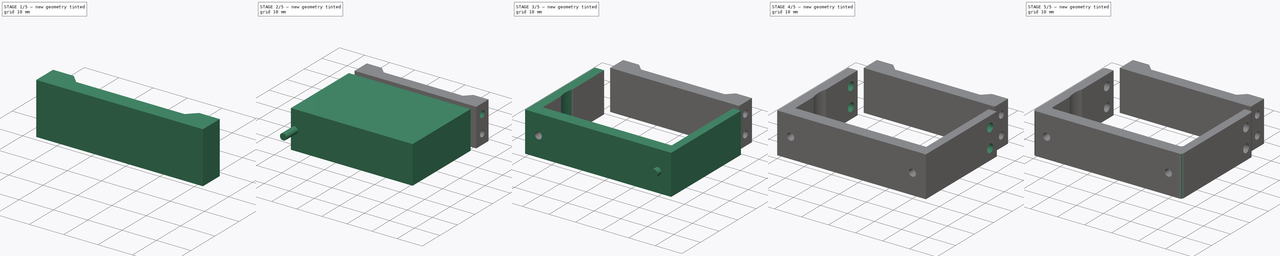
[diagram: build sequence overview — one tinted view per stage of 5, left to right]
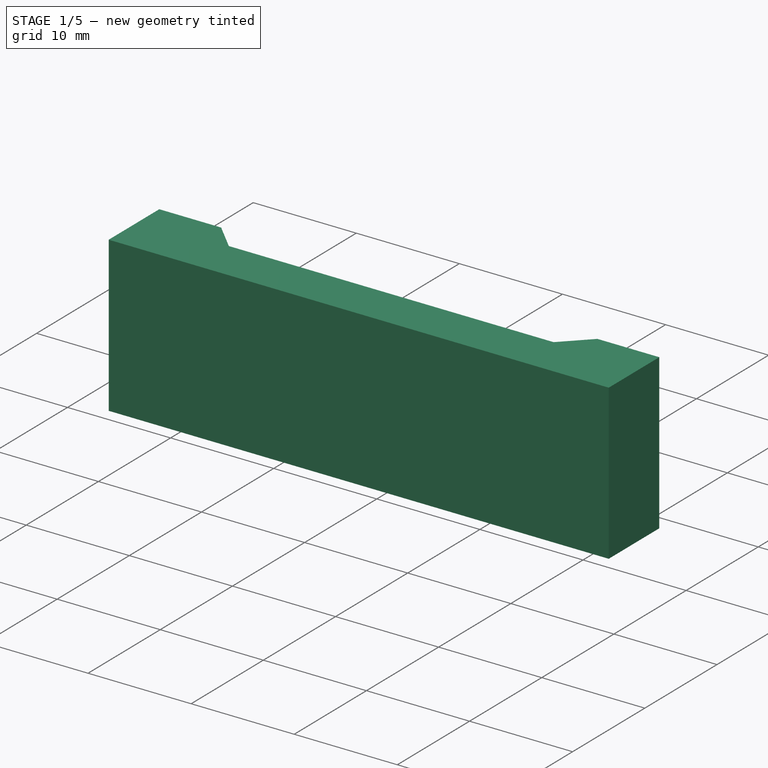
[diagram: stage 1 of 5 — iso view after this stage's code; geometry added in this stage tinted green]
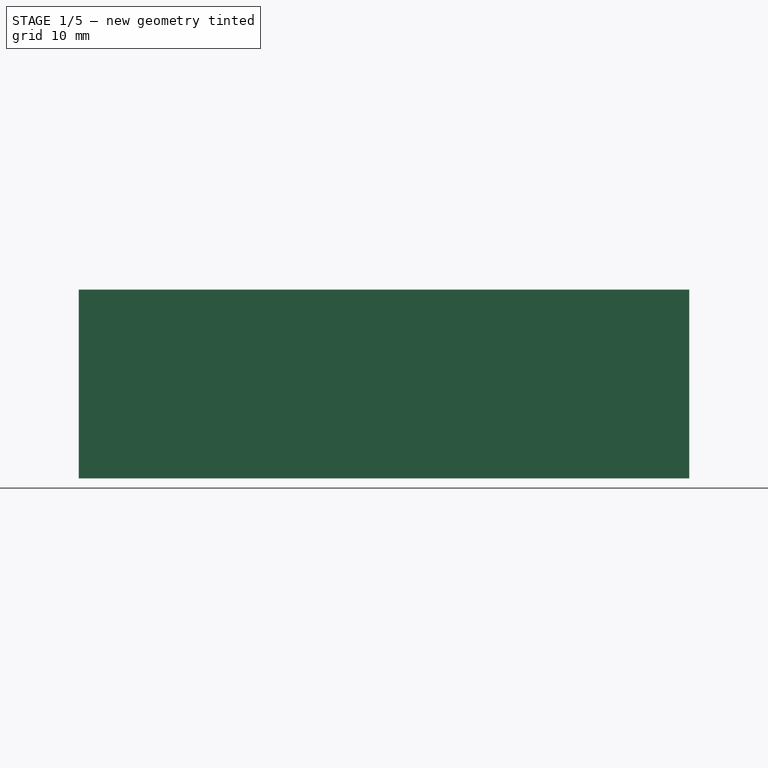
[diagram: stage 1 of 5 — front view after this stage's code; geometry added in this stage tinted green]
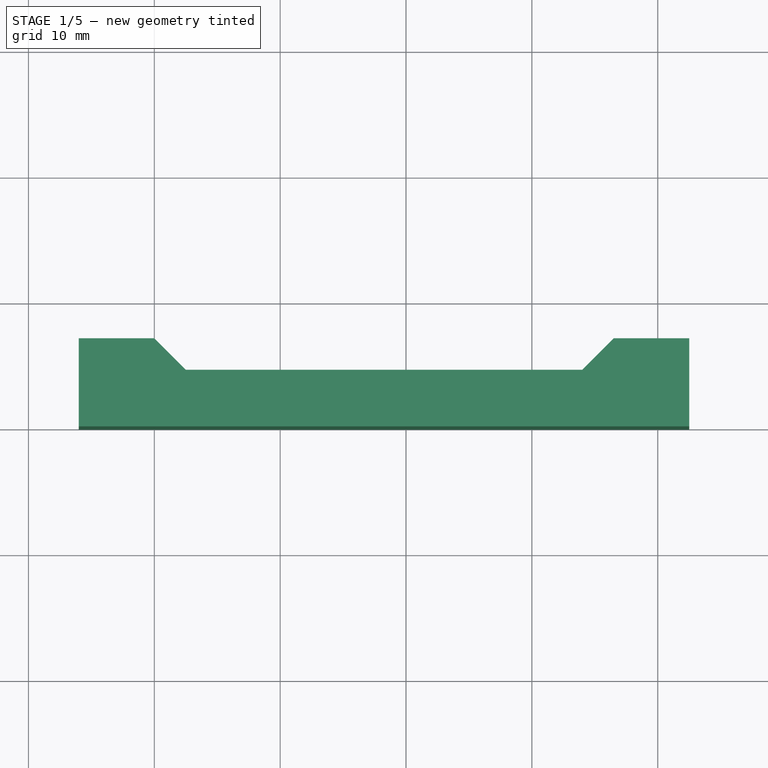
[diagram: stage 1 of 5 — top view after this stage's code; geometry added in this stage tinted green]
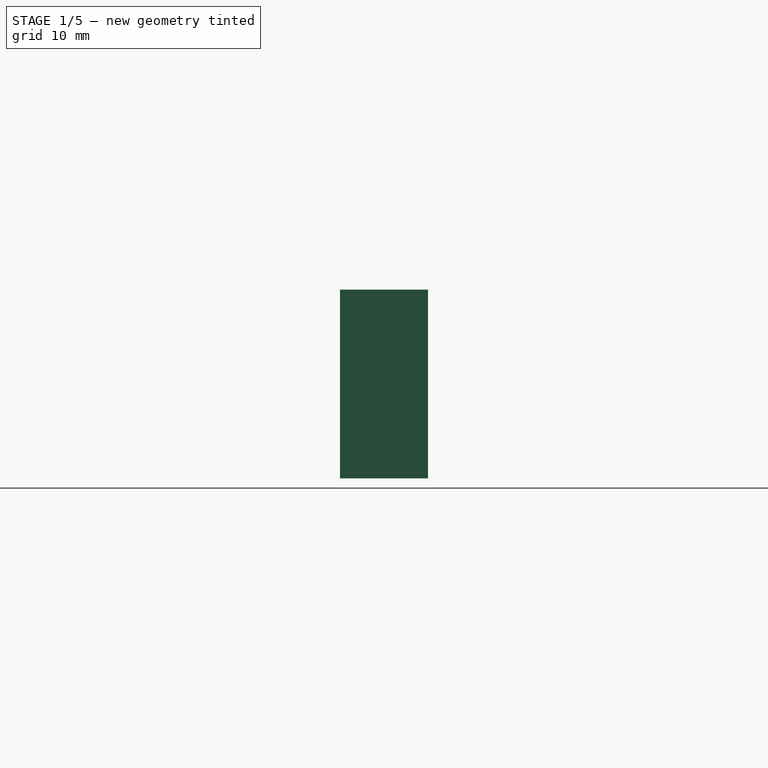
[diagram: stage 1 of 5 — right view after this stage's code; geometry added in this stage tinted green]
FCSTD DOCUMENT  (FreeCAD 0.17R13541 (Git))
Label: AX-12-Bracket
License: All rights reserved
LicenseURL: http://en.wikipedia.org/wiki/All_rights_reserved
objects: Part::Cut×10, Part::Cylinder×9, Part::Fillet×6, Part::Box×2, Sketcher::SketchObject×1, PartDesign::Pad×1, PartDesign::Body×1
note: 31 computed .brp shape members not serialized (recipe doc carries the construction recipe); baked Part::Feature solids carry a one-line shape summary decoded from their .brp

FEATURE [Sketcher::SketchObject] Sketch
  MapMode = 5
  Support = -> [XY_Plane]
  sketch-geometry (8):
    g0: LineSegment StartX=4 StartY=40 StartZ=0 EndX=52.5 EndY=40 EndZ=0
    g1: LineSegment StartX=52.5 StartY=40 StartZ=0 EndX=52.5 EndY=47 EndZ=0
    g2: LineSegment StartX=52.5 StartY=47 StartZ=0 EndX=46.5 EndY=47 EndZ=0
    g3: LineSegment StartX=46.5 StartY=47 StartZ=0 EndX=44 EndY=44.5 EndZ=0
    g4: LineSegment StartX=44 StartY=44.5 StartZ=0 EndX=12.5 EndY=44.5 EndZ=0
    g5: LineSegment StartX=12.5 StartY=44.5 StartZ=0 EndX=10 EndY=47 EndZ=0
    g6: LineSegment StartX=10 StartY=47 StartZ=0 EndX=4 EndY=47 EndZ=0
    g7: LineSegment StartX=4 StartY=47 StartZ=0 EndX=4 EndY=40 EndZ=0
  constraints (24):
    c: Horizontal(g0)
    c: Coincident(g0,g1)
    c: Vertical(g1)
    c: Coincident(g1,g2)
    c: Horizontal(g2)
    c: Coincident(g2,g3)
    c: Coincident(g3,g4)
    c: Horizontal(g4)
    c: Coincident(g4,g5)
    c: Coincident(g5,g6)
    c: Horizontal(g6)
    c: Coincident(g6,g7)
    c: Coincident(g7,g0)
    c: Perpendicular(g7,g0)
    c: DistanceX(g0,g0) = 48.5
    c: DistanceY(g0,g1) = 7
    c: DistanceX(g2,g1) = 6
    c: Angle(g3,g4) = 2.35619
    c: DistanceY(g0,g3) = 4.5
    c: DistanceY(g0,g6) = 7
    c: DistanceX(g6,g5) = 6
    c: Angle(g5) = 2.35619
    c: DistanceX(g-1,g6) = 4
    c: DistanceY(g-1,g0) = 40
FEATURE [PartDesign::Pad] Pad
  Length = 15
  Length2 = 100
  Profile = -> Sketch
  Type = 0
FEATURE [PartDesign::Body] Body
  Group = -> [Sketch,Pad]
  Origin = -> Origin
  Tip = -> Pad
FEATURE [Part::Cylinder] Cylinder005
  Angle = 360
  AttacherType = Attacher::AttachEngine3D
  Height = 7
  Placement = pos=(4,43.5,4) rot=(0,1,0;1.5708rad)
  Radius = 1.3
FEATURE [Part::Cylinder] Cylinder006
  Angle = 360
  AttacherType = Attacher::AttachEngine3D
  Height = 7
  Placement = pos=(4,43.5,11) rot=(0,1,0;1.5708rad)
  Radius = 1.3
FEATURE [Part::Cylinder] Cylinder007
  Angle = 360
  AttacherType = Attacher::AttachEngine3D
  Height = 7
  Placement = pos=(45.5,43.5,4) rot=(0,1,0;1.5708rad)
  Radius = 1.3
FEATURE [Part::Cut] Cut006
  Base = -> Body
  Tool = -> Cylinder005
FEATURE [Part::Cut] Cut007
  Base = -> Cut006
  Tool = -> Cylinder006
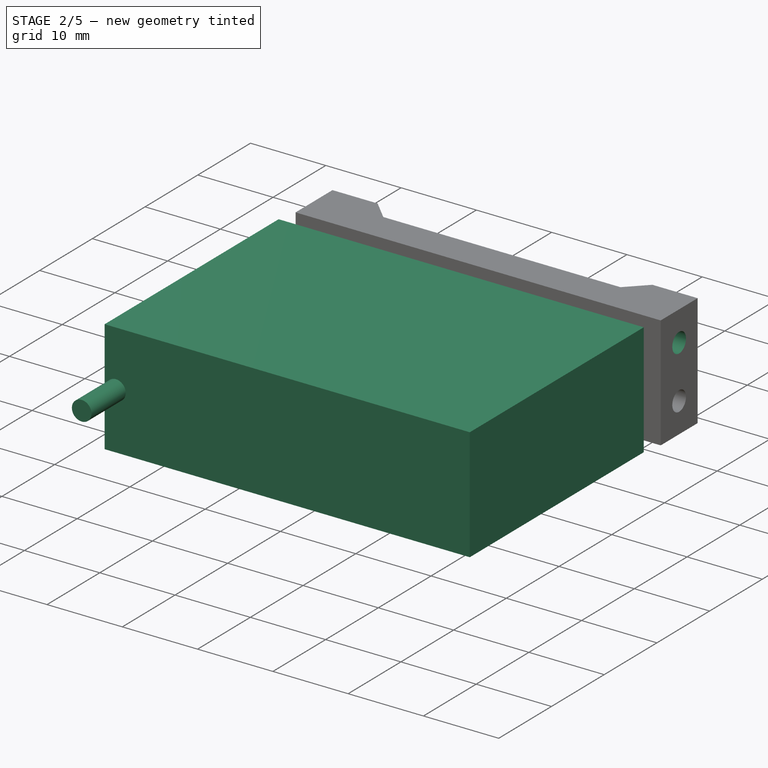
[diagram: stage 2 of 5 — iso view after this stage's code; geometry added in this stage tinted green]
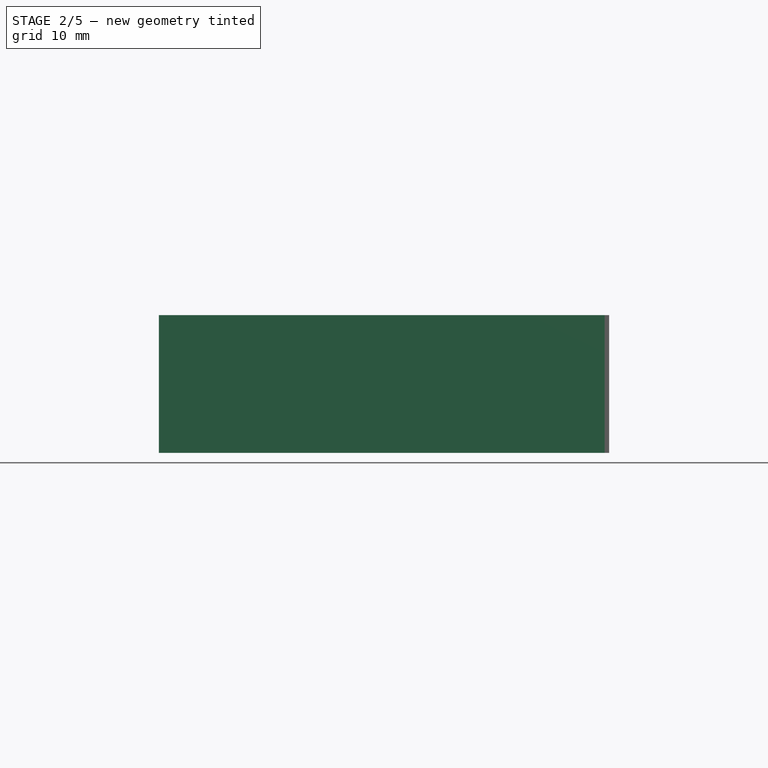
[diagram: stage 2 of 5 — front view after this stage's code; geometry added in this stage tinted green]
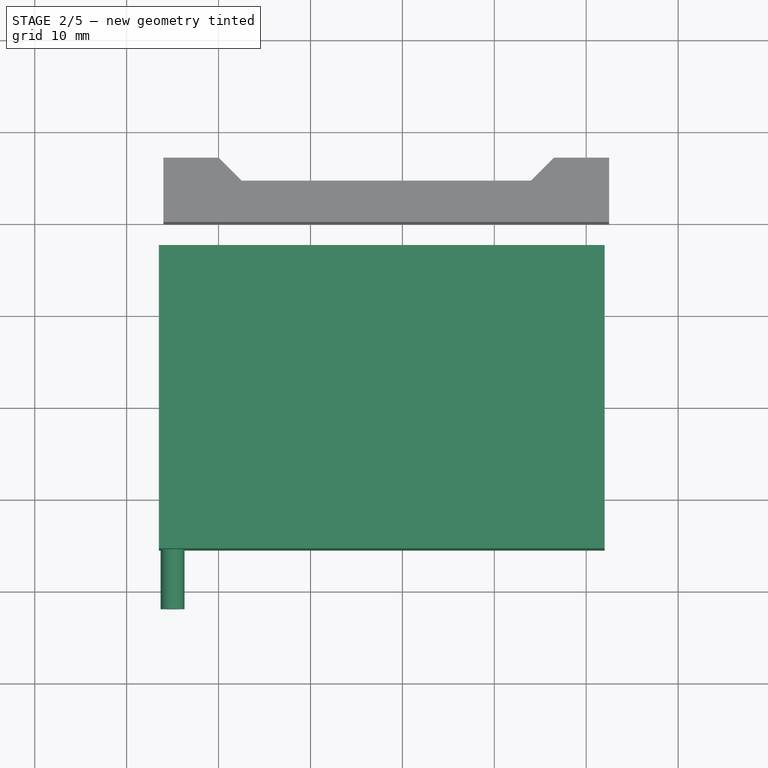
[diagram: stage 2 of 5 — top view after this stage's code; geometry added in this stage tinted green]
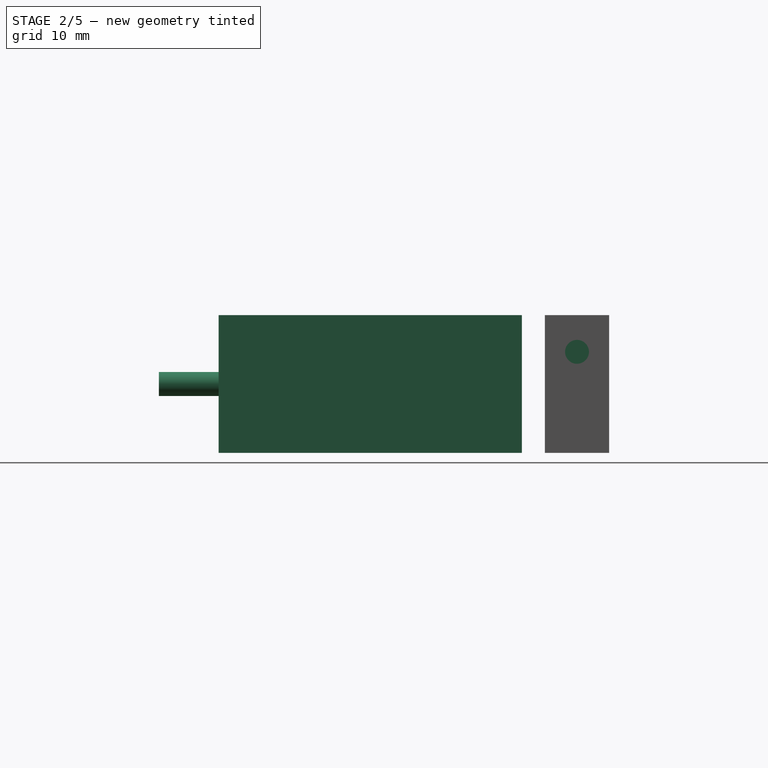
[diagram: stage 2 of 5 — right view after this stage's code; geometry added in this stage tinted green]
FEATURE [Part::Box] Box001  label="Cube001"
  AttacherType = Attacher::AttachEngine3D
  Height = 15
  Length = 48.5
  Placement = pos=(3.5,4.5,0) rot=(0,0,1;0rad)
  Width = 33
FEATURE [Part::Cylinder] Cylinder001
  Angle = 360
  AttacherType = Attacher::AttachEngine3D
  Height = 10
  Placement = pos=(5,8,7.5) rot=(1,0,0;1.5708rad)
  Radius = 1.3
FEATURE [Part::Cylinder] Cylinder008
  Angle = 360
  AttacherType = Attacher::AttachEngine3D
  Height = 7
  Placement = pos=(45.5,43.5,11) rot=(0,1,0;1.5708rad)
  Radius = 1.3
FEATURE [Part::Cut] Cut008
  Base = -> Cut007
  Tool = -> Cylinder007
FEATURE [Part::Cut] Cut009
  Base = -> Cut008
  Tool = -> Cylinder008
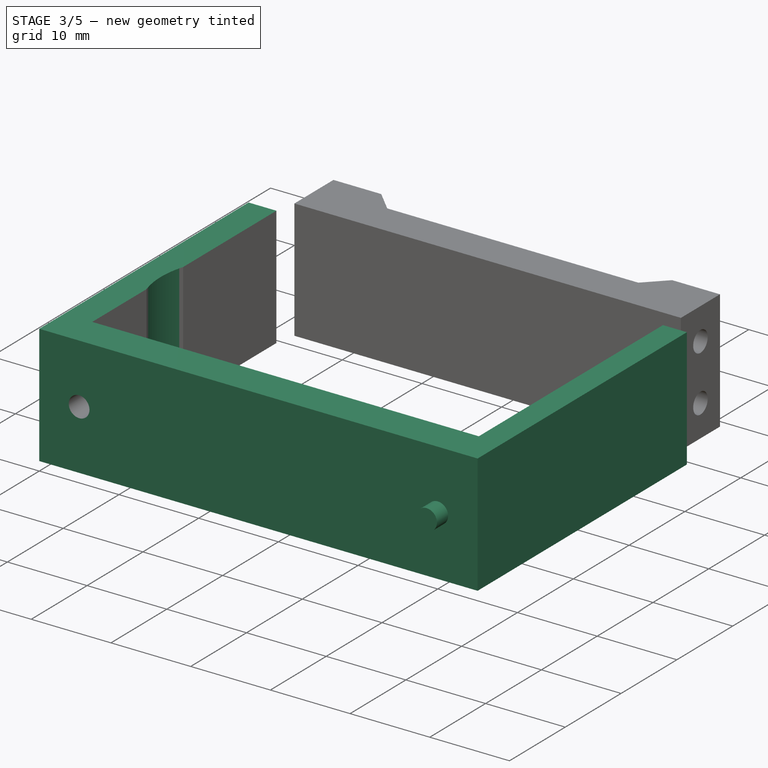
[diagram: stage 3 of 5 — iso view after this stage's code; geometry added in this stage tinted green]
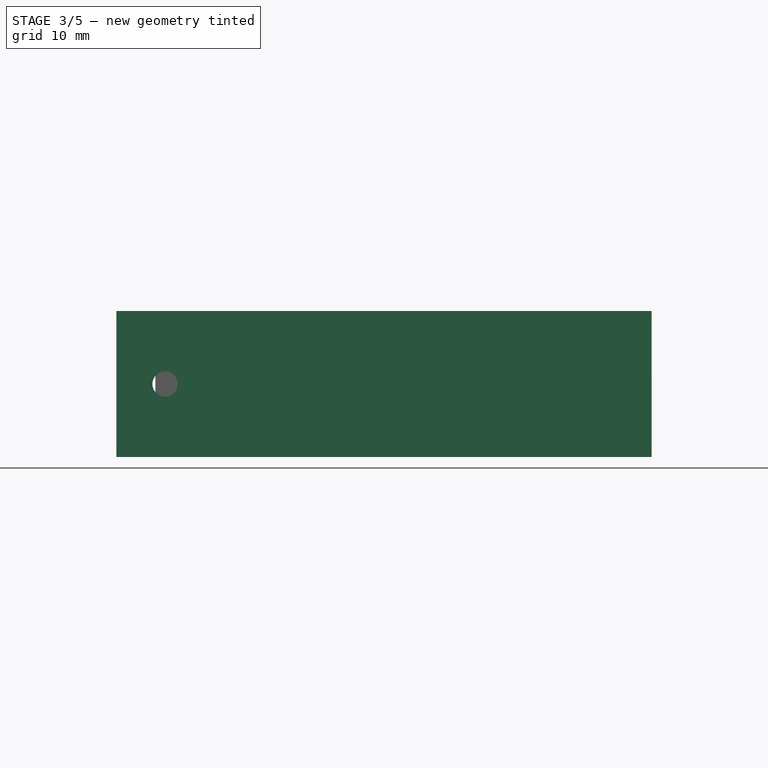
[diagram: stage 3 of 5 — front view after this stage's code; geometry added in this stage tinted green]
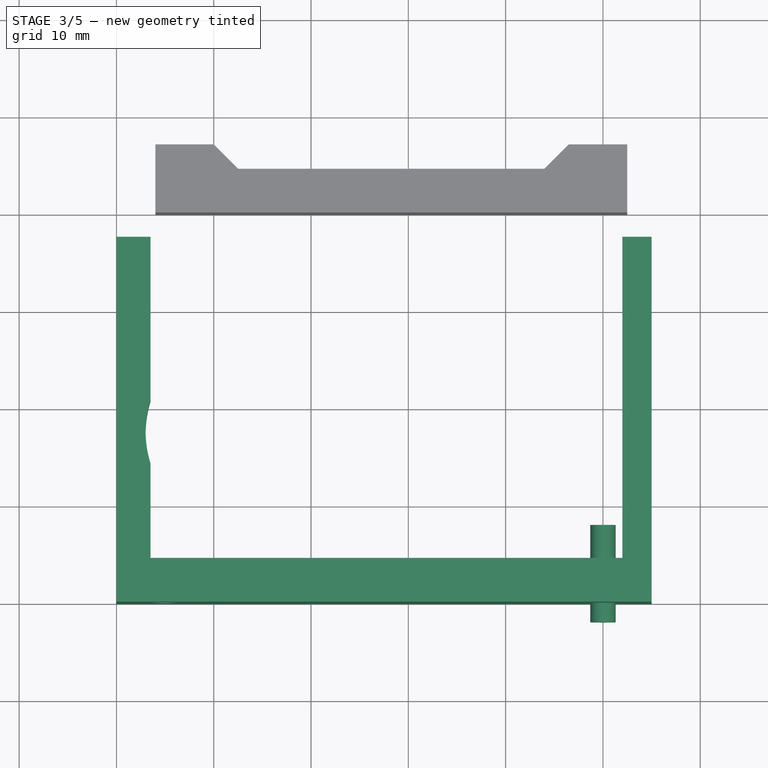
[diagram: stage 3 of 5 — top view after this stage's code; geometry added in this stage tinted green]
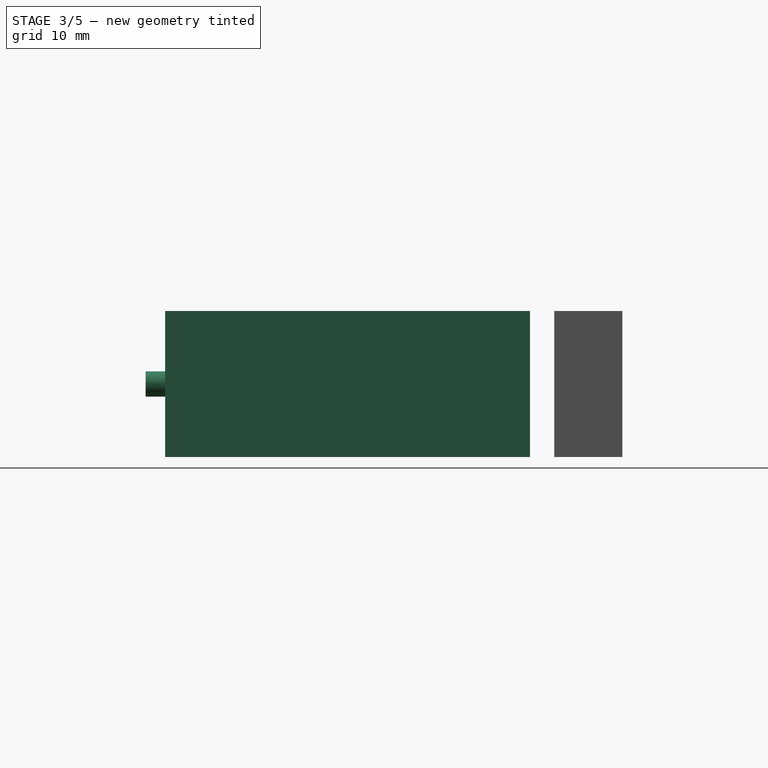
[diagram: stage 3 of 5 — right view after this stage's code; geometry added in this stage tinted green]
FEATURE [Part::Box] Box  label="Cube"
  AttacherType = Attacher::AttachEngine3D
  Height = 15
  Length = 55
  Width = 37.5
FEATURE [Part::Cylinder] Cylinder
  Angle = 360
  AttacherType = Attacher::AttachEngine3D
  Height = 15
  Placement = pos=(14,17.5,0) rot=(0,0,1;0rad)
  Radius = 11
FEATURE [Part::Cut] Cut
  Base = -> Box
  Tool = -> Box001
FEATURE [Part::Cut] Cut001
  Base = -> Cut
  Tool = -> Cylinder
FEATURE [Part::Cylinder] Cylinder002
  Angle = 360
  AttacherType = Attacher::AttachEngine3D
  Height = 10
  Placement = pos=(50,8,7.5) rot=(1,0,0;1.5708rad)
  Radius = 1.3
FEATURE [Part::Cut] Cut002
  Base = -> Cut001
  Tool = -> Cylinder001
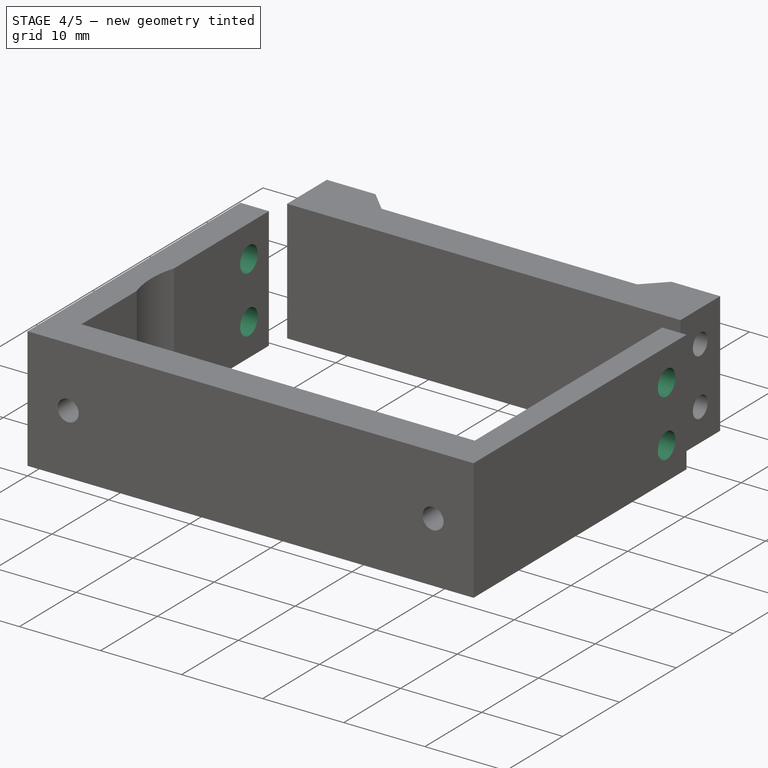
[diagram: stage 4 of 5 — iso view after this stage's code; geometry added in this stage tinted green]
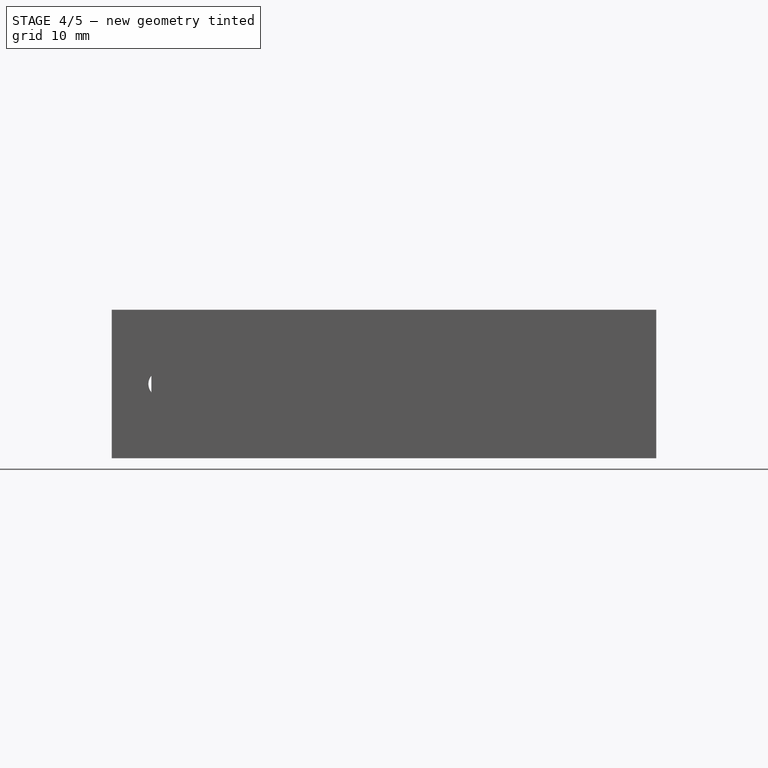
[diagram: stage 4 of 5 — front view after this stage's code; geometry added in this stage tinted green]
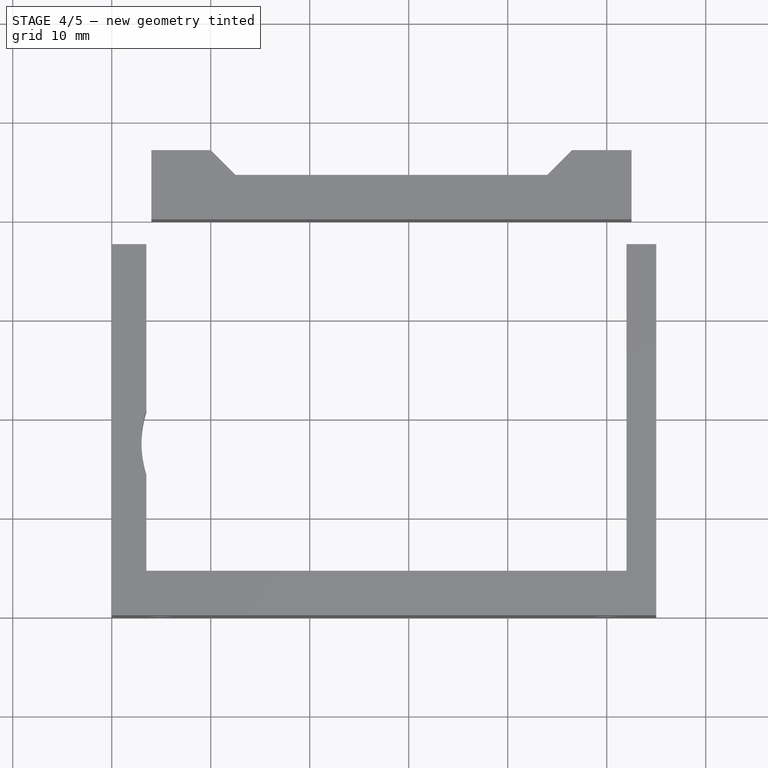
[diagram: stage 4 of 5 — top view after this stage's code; geometry added in this stage tinted green]
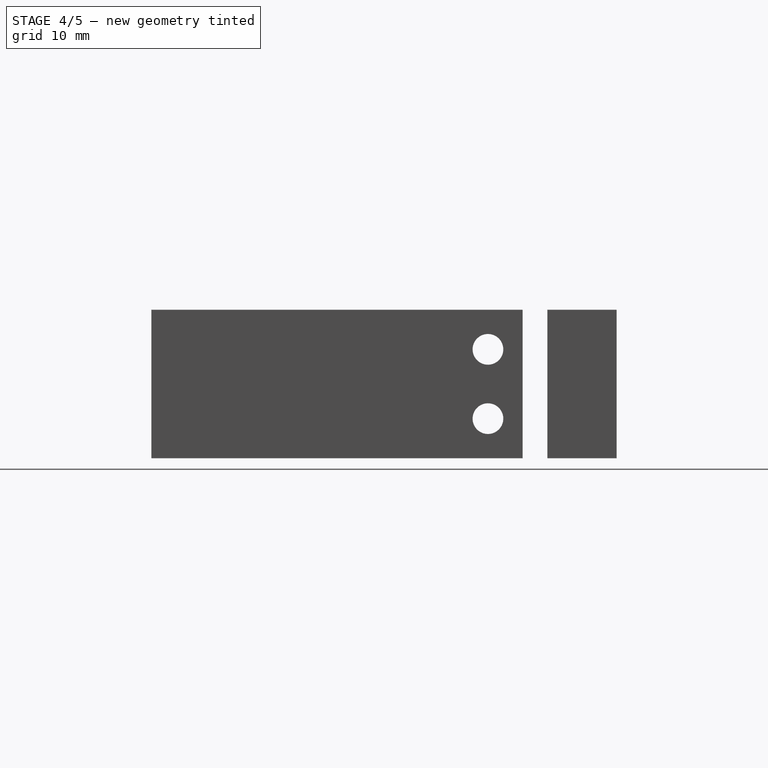
[diagram: stage 4 of 5 — right view after this stage's code; geometry added in this stage tinted green]
FEATURE [Part::Cylinder] Cylinder003
  Angle = 360
  AttacherType = Attacher::AttachEngine3D
  Height = 60
  Placement = pos=(0,34,4) rot=(0,1,0;1.5708rad)
  Radius = 1.55
FEATURE [Part::Cylinder] Cylinder004
  Angle = 360
  AttacherType = Attacher::AttachEngine3D
  Height = 60
  Placement = pos=(0,34,11) rot=(0,1,0;1.5708rad)
  Radius = 1.55
FEATURE [Part::Cut] Cut003
  Base = -> Cut002
  Tool = -> Cylinder002
FEATURE [Part::Cut] Cut004
  Base = -> Cut003
  Tool = -> Cylinder003
FEATURE [Part::Cut] Cut005
  Base = -> Cut004
  Tool = -> Cylinder004
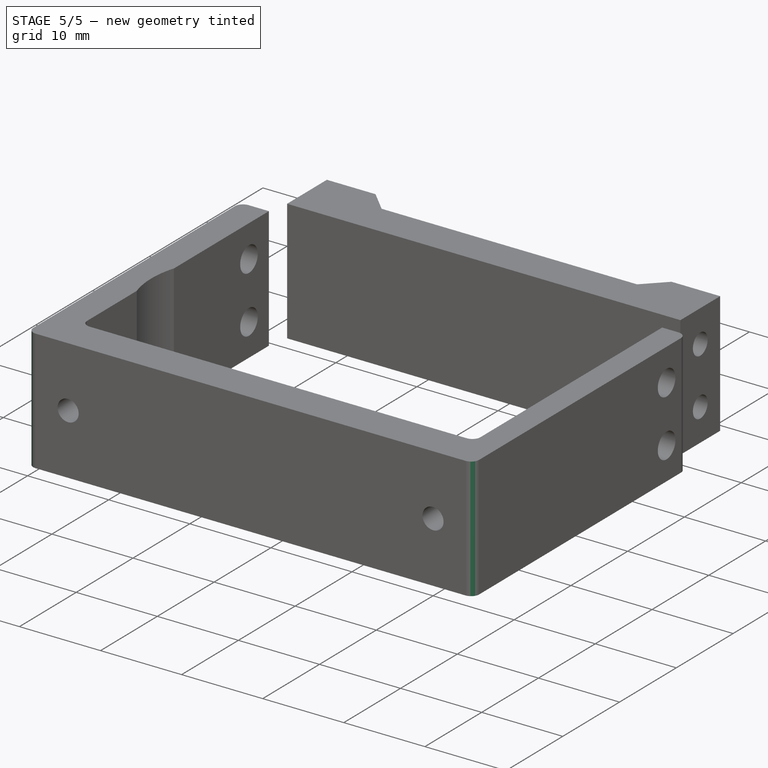
[diagram: stage 5 of 5 — iso view after this stage's code; geometry added in this stage tinted green]
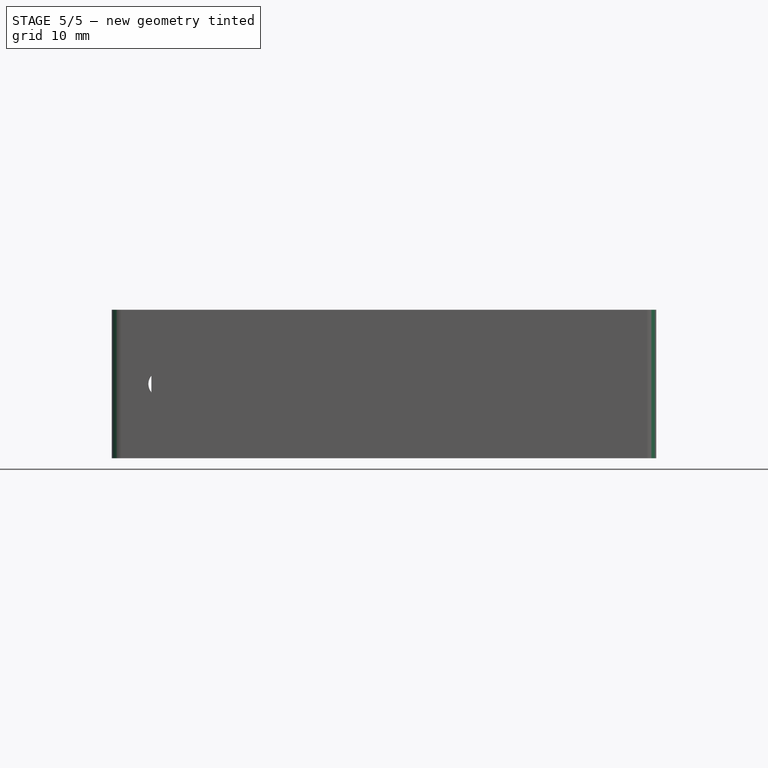
[diagram: stage 5 of 5 — front view after this stage's code; geometry added in this stage tinted green]
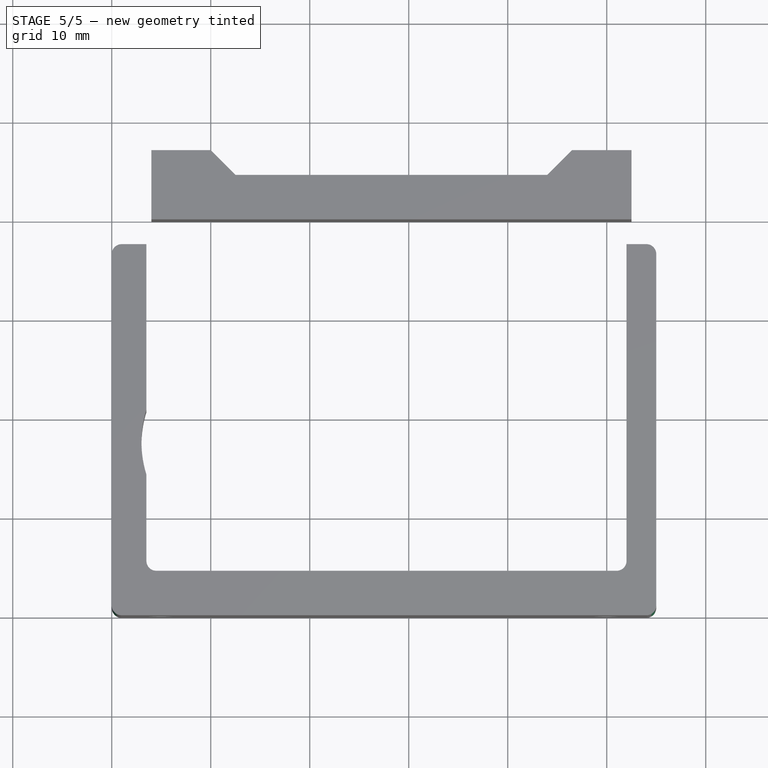
[diagram: stage 5 of 5 — top view after this stage's code; geometry added in this stage tinted green]
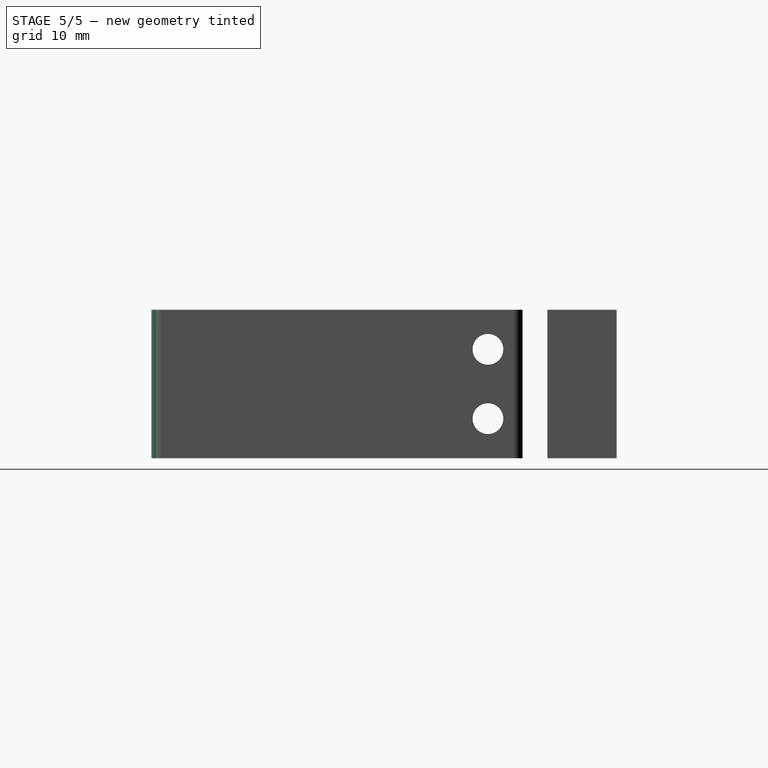
[diagram: stage 5 of 5 — right view after this stage's code; geometry added in this stage tinted green]
FEATURE [Part::Fillet] Fillet
  Base = -> Cut005
  Edges = 1 edges r=1: [Edge4]
FEATURE [Part::Fillet] Fillet001
  Base = -> Fillet
  Edges = 1 edges r=1: [Edge3]
FEATURE [Part::Fillet] Fillet002
  Base = -> Fillet001
  Edges = 1 edges r=1: [Edge48]
FEATURE [Part::Fillet] Fillet003
  Base = -> Fillet002
  Edges = 1 edges r=1: [Edge25]
FEATURE [Part::Fillet] Fillet004
  Base = -> Fillet003
  Edges = 1 edges r=1: [Edge42]
FEATURE [Part::Fillet] Fillet005
  Base = -> Fillet004
  Edges = 1 edges r=1: [Edge17]
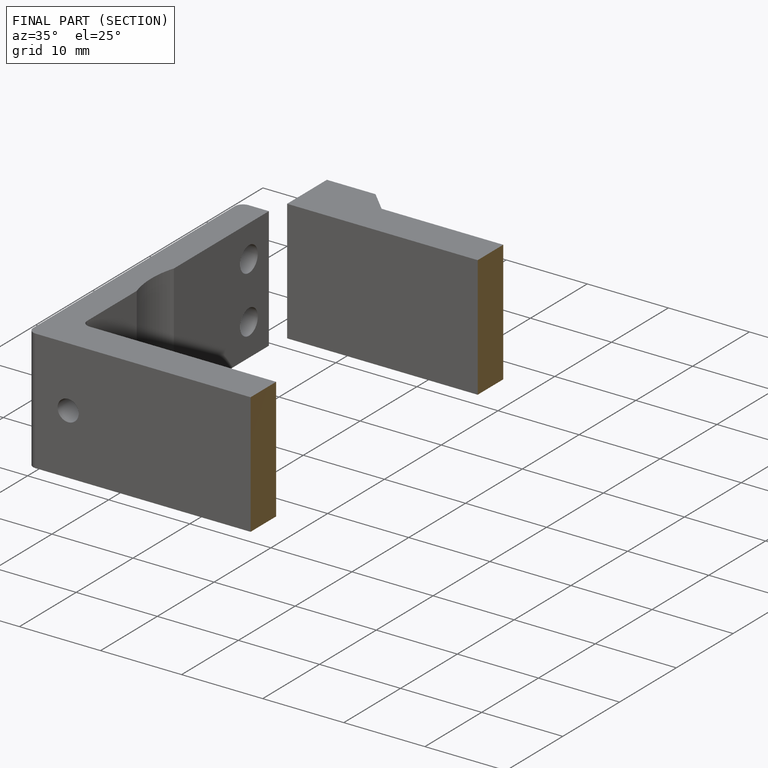
[diagram: finished part — half-section view (interior)]
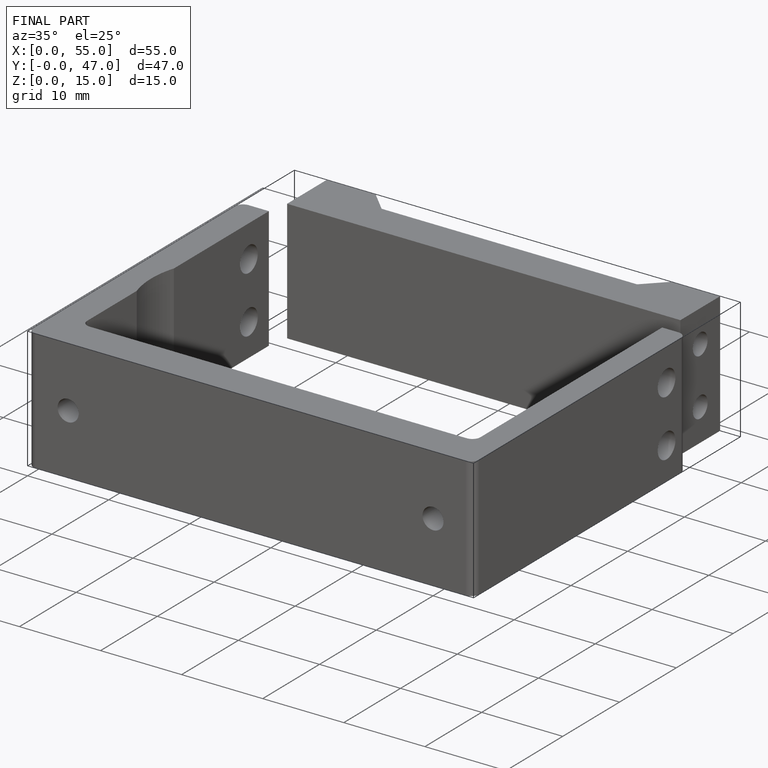
[diagram: finished part — iso view with bounding-box wireframe]
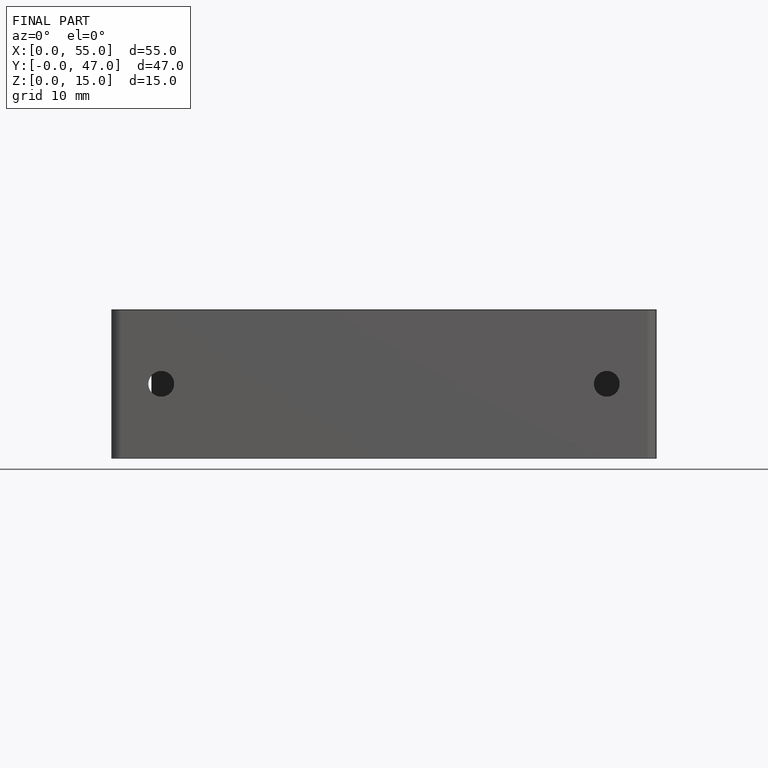
[diagram: finished part — front view with bounding-box wireframe]
